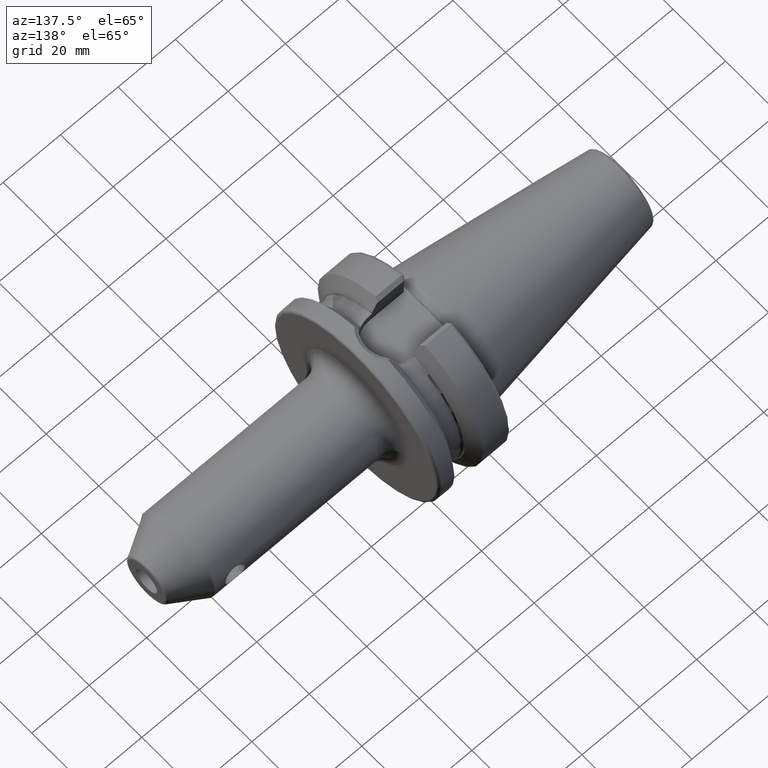
[diagram: clean part render]
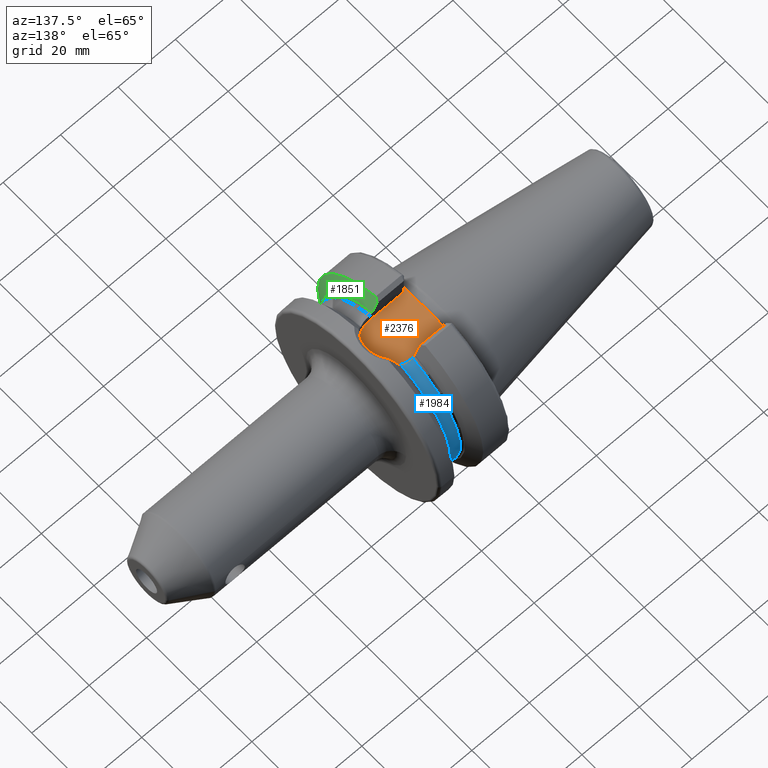
[diagram: same view with three faces highlighted in distinct colors, each labeled with its STEP entity id]
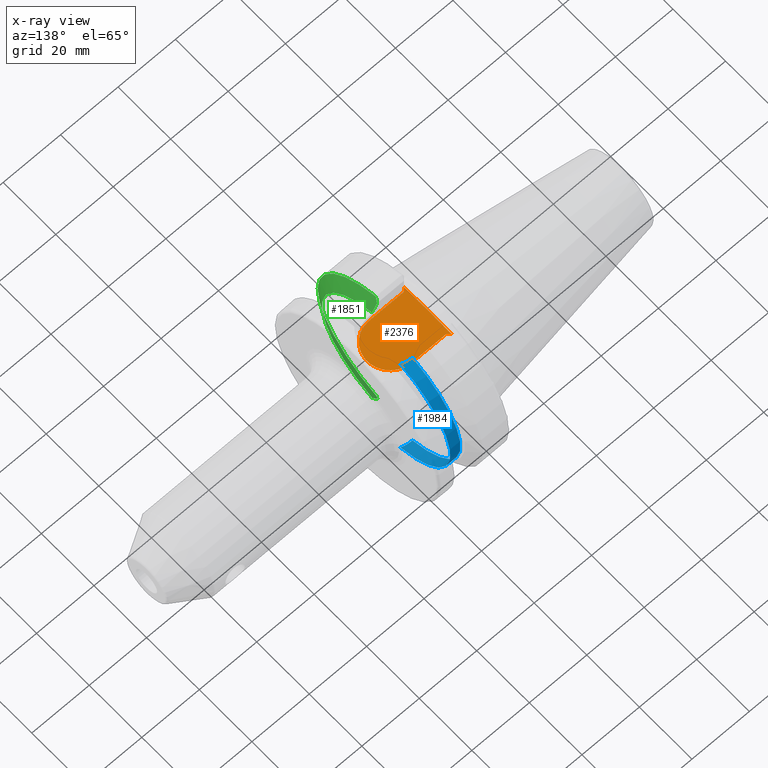
[diagram: x-ray of the same camera — body ghosted, the three highlighted faces saturated]
A machine part, auxiliary view with three faces highlighted in distinct colors.
The next image is the same camera in x-ray (body ghosted, the three faces saturated) — at least one of them is partly hidden behind the body in this view.
Their STEP definitions:

[orange] entity #2376 — the highlighted planar face has unit normal (0, 0, 1).
#680=DIRECTION('',(1.E0,0.E0,0.E0));
#681=VECTOR('',#680,1.2155E1);
#682=CARTESIAN_POINT('',(3.E0,-8.095E0,2.245E1));
#683=LINE('',#682,#681);
#684=DIRECTION('',(0.E0,1.E0,0.E0));
#685=VECTOR('',#684,4.706022328605E0);
#686=CARTESIAN_POINT('',(2.E0,-9.095E0,2.245E1));
#687=LINE('',#686,#685);
#688=DIRECTION('',(0.E0,1.E0,0.E0));
#689=VECTOR('',#688,4.706022328605E0);
#690=CARTESIAN_POINT('',(2.E0,4.388977671395E0,2.245E1));
#691=LINE('',#690,#689);
#692=DIRECTION('',(-1.E0,0.E0,0.E0));
#693=VECTOR('',#692,1.2155E1);
#694=CARTESIAN_POINT('',(1.5155E1,8.095E0,2.245E1));
#695=LINE('',#694,#693);
#696=CARTESIAN_POINT('',(1.5155E1,0.E0,2.245E1));
#697=DIRECTION('',(0.E0,0.E0,1.E0));
#698=DIRECTION('',(0.E0,-1.E0,0.E0));
#699=AXIS2_PLACEMENT_3D('',#696,#697,#698);
#705=DIRECTION('',(7.071067811865E-1,7.071067811865E-1,0.E0));
#706=VECTOR('',#705,1.414213562373E0);
#707=CARTESIAN_POINT('',(2.E0,-9.095E0,2.245E1));
#708=LINE('',#707,#706);
#714=CARTESIAN_POINT('',(2.E0,-4.388977671395E0,2.245E1));
#715=CARTESIAN_POINT('',(2.E0,-3.970864393558E0,2.245E1));
#716=CARTESIAN_POINT('',(1.981114905487E0,-3.134790252725E0,2.245E1));
#717=CARTESIAN_POINT('',(1.935909306649E0,-1.881114481277E0,2.245E1));
#718=CARTESIAN_POINT('',(1.903922826077E0,-6.271978192649E-1,2.245E1));
#719=CARTESIAN_POINT('',(1.903921553166E0,6.271174205746E-1,2.245E1));
#720=CARTESIAN_POINT('',(1.935907277499E0,1.881058976319E0,2.245E1));
#721=CARTESIAN_POINT('',(1.981114329557E0,3.134769380755E0,2.245E1));
#722=CARTESIAN_POINT('',(2.E0,3.970858027314E0,2.245E1));
#723=CARTESIAN_POINT('',(2.E0,4.388977671395E0,2.245E1));
#730=DIRECTION('',(-7.071067811865E-1,7.071067811865E-1,0.E0));
#731=VECTOR('',#730,1.414213562373E0);
#732=CARTESIAN_POINT('',(3.E0,8.095E0,2.245E1));
#733=LINE('',#732,#731);
#1432=CARTESIAN_POINT('',(1.5155E1,-8.095E0,2.245E1));
#1433=CARTESIAN_POINT('',(1.5155E1,8.095E0,2.245E1));
#1434=VERTEX_POINT('',#1432);
#1435=VERTEX_POINT('',#1433);
#1436=CARTESIAN_POINT('',(2.E0,4.388977671395E0,2.245E1));
#1437=VERTEX_POINT('',#1436);
#1438=CARTESIAN_POINT('',(2.E0,-4.388977671395E0,2.245E1));
#1439=VERTEX_POINT('',#1438);
#1473=CARTESIAN_POINT('',(3.E0,-8.095E0,2.245E1));
#1475=VERTEX_POINT('',#1473);
#1477=CARTESIAN_POINT('',(2.E0,-9.095E0,2.245E1));
#1479=VERTEX_POINT('',#1477);
#1486=CARTESIAN_POINT('',(2.E0,9.095E0,2.245E1));
#1487=VERTEX_POINT('',#1486);
#1488=CARTESIAN_POINT('',(3.E0,8.095E0,2.245E1));
#1490=VERTEX_POINT('',#1488);
#2358=CARTESIAN_POINT('',(0.E0,0.E0,2.245E1));
#2359=DIRECTION('',(0.E0,0.E0,1.E0));
#2360=DIRECTION('',(1.E0,0.E0,0.E0));
#2361=AXIS2_PLACEMENT_3D('',#2358,#2359,#2360);
#2362=PLANE('',#2361);
#2363=ORIENTED_EDGE('',*,*,#2124,.F.);
#2365=ORIENTED_EDGE('',*,*,#2364,.F.);
#2366=ORIENTED_EDGE('',*,*,#1735,.T.);
#2368=ORIENTED_EDGE('',*,*,#2367,.T.);
#2369=ORIENTED_EDGE('',*,*,#1713,.T.);
#2371=ORIENTED_EDGE('',*,*,#2370,.F.);
#2372=ORIENTED_EDGE('',*,*,#2349,.F.);
#2373=ORIENTED_EDGE('',*,*,#2095,.F.);
#2374=EDGE_LOOP('',(#2363,#2365,#2366,#2368,#2369,#2371,#2372,#2373));
#2375=FACE_OUTER_BOUND('',#2374,.F.);
#2376=ADVANCED_FACE('',(#2375),#2362,.T.);
#700=CIRCLE('',#699,8.095E0);
#724=B_SPLINE_CURVE_WITH_KNOTS('',3,(#714,#715,#716,#717,#718,#719,#720,#721,
#722,#723),.UNSPECIFIED.,.F.,.F.,(4,1,1,1,1,1,1,4),(0.E0,1.428571428571E-1,
2.857142857143E-1,4.285714285714E-1,5.714285714286E-1,7.142857142857E-1,
8.571428571429E-1,1.E0),.UNSPECIFIED.);
#1713=EDGE_CURVE('',#1437,#1487,#691,.T.);
#1735=EDGE_CURVE('',#1479,#1439,#687,.T.);
#2095=EDGE_CURVE('',#1434,#1435,#700,.T.);
#2124=EDGE_CURVE('',#1475,#1434,#683,.T.);
#2349=EDGE_CURVE('',#1435,#1490,#695,.T.);
#2364=EDGE_CURVE('',#1479,#1475,#708,.T.);
#2367=EDGE_CURVE('',#1439,#1437,#724,.T.);
#2370=EDGE_CURVE('',#1490,#1487,#733,.T.);

[blue] entity #1984 — the highlighted cylindrical surface (partial cylindrical patch) has radius 26.375 mm, axis along (1, 0, 0).
#185=DIRECTION('',(1.E0,2.074577330686E-14,0.E0));
#186=VECTOR('',#185,3.425E-1);
#187=CARTESIAN_POINT('',(1.48125E1,8.095E0,-2.510202382279E1));
#188=LINE('',#187,#186);
#348=CARTESIAN_POINT('',(1.48125E1,0.E0,0.E0));
#349=DIRECTION('',(-1.E0,0.E0,0.E0));
#350=DIRECTION('',(0.E0,3.069194312796E-1,9.517355003902E-1));
#351=AXIS2_PLACEMENT_3D('',#348,#349,#350);
#353=CARTESIAN_POINT('',(1.5155E1,8.095E0,-2.510202382279E1));
#354=CARTESIAN_POINT('',(1.552274115811E1,8.095E0,-2.510202382279E1));
#355=CARTESIAN_POINT('',(1.625266243215E1,8.045449937199E0,-2.511808739773E1));
#356=CARTESIAN_POINT('',(1.734035783533E1,7.820815510938E0,-2.518941465745E1));
#357=CARTESIAN_POINT('',(1.804170386658E1,7.572200800424E0,-2.526513476705E1));
#358=CARTESIAN_POINT('',(1.83875E1,7.421588020768E0,-2.530929979770E1));
#360=CARTESIAN_POINT('',(1.83875E1,7.421588020768E0,2.530929979770E1));
#361=CARTESIAN_POINT('',(1.804170386658E1,7.572200800424E0,2.526513476705E1));
#362=CARTESIAN_POINT('',(1.734035783533E1,7.820815510938E0,2.518941465745E1));
#363=CARTESIAN_POINT('',(1.625266243215E1,8.045449937199E0,2.511808739773E1));
#364=CARTESIAN_POINT('',(1.552274115811E1,8.095E0,2.510202382279E1));
#365=CARTESIAN_POINT('',(1.5155E1,8.095E0,2.510202382279E1));
#450=CARTESIAN_POINT('',(1.83875E1,0.E0,0.E0));
#451=DIRECTION('',(-1.E0,0.E0,0.E0));
#452=DIRECTION('',(0.E0,2.813872235362E-1,9.595943051262E-1));
#453=AXIS2_PLACEMENT_3D('',#450,#451,#452);
#657=DIRECTION('',(1.E0,0.E0,0.E0));
#658=VECTOR('',#657,3.425E-1);
#659=CARTESIAN_POINT('',(1.48125E1,8.095E0,2.510202382279E1));
#660=LINE('',#659,#658);
#1314=CARTESIAN_POINT('',(1.48125E1,8.095E0,2.510202382279E1));
#1315=CARTESIAN_POINT('',(1.48125E1,8.095E0,-2.510202382279E1));
#1316=VERTEX_POINT('',#1314);
#1317=VERTEX_POINT('',#1315);
#1326=CARTESIAN_POINT('',(1.83875E1,7.421588020768E0,2.530929979770E1));
#1327=CARTESIAN_POINT('',(1.83875E1,7.421588020768E0,-2.530929979770E1));
#1328=VERTEX_POINT('',#1326);
#1329=VERTEX_POINT('',#1327);
#1448=CARTESIAN_POINT('',(1.5155E1,8.095E0,2.510202382279E1));
#1449=VERTEX_POINT('',#1448);
#1456=CARTESIAN_POINT('',(1.5155E1,8.095E0,-2.510202382279E1));
#1457=VERTEX_POINT('',#1456);
#1967=CARTESIAN_POINT('',(1.106999478413E1,0.E0,0.E0));
#1968=DIRECTION('',(1.E0,0.E0,0.E0));
#1969=DIRECTION('',(0.E0,-1.E0,0.E0));
#1970=AXIS2_PLACEMENT_3D('',#1967,#1968,#1969);
#1971=CYLINDRICAL_SURFACE('',#1970,2.6375E1);
#1972=ORIENTED_EDGE('',*,*,#1946,.T.);
#1973=ORIENTED_EDGE('',*,*,#1777,.T.);
#1975=ORIENTED_EDGE('',*,*,#1974,.T.);
#1977=ORIENTED_EDGE('',*,*,#1976,.F.);
#1979=ORIENTED_EDGE('',*,*,#1978,.T.);
#1981=ORIENTED_EDGE('',*,*,#1980,.F.);
#1982=EDGE_LOOP('',(#1972,#1973,#1975,#1977,#1979,#1981));
#1983=FACE_OUTER_BOUND('',#1982,.F.);
#1984=ADVANCED_FACE('',(#1983),#1971,.T.);
#352=CIRCLE('',#351,2.6375E1);
#359=B_SPLINE_CURVE_WITH_KNOTS('',3,(#353,#354,#355,#356,#357,#358),
.UNSPECIFIED.,.F.,.F.,(4,1,1,4),(0.E0,3.333333333333E-1,6.666666666667E-1,1.E0),
.UNSPECIFIED.);
#366=B_SPLINE_CURVE_WITH_KNOTS('',3,(#360,#361,#362,#363,#364,#365),
.UNSPECIFIED.,.F.,.F.,(4,1,1,4),(0.E0,3.333333333333E-1,6.666666666667E-1,1.E0),
.UNSPECIFIED.);
#454=CIRCLE('',#453,2.6375E1);
#1777=EDGE_CURVE('',#1317,#1457,#188,.T.);
#1946=EDGE_CURVE('',#1316,#1317,#352,.T.);
#1974=EDGE_CURVE('',#1457,#1329,#359,.T.);
#1976=EDGE_CURVE('',#1328,#1329,#454,.T.);
#1978=EDGE_CURVE('',#1328,#1449,#366,.T.);
#1980=EDGE_CURVE('',#1316,#1449,#660,.T.);

[green] entity #1851 — the highlighted conical surface has half-angle 60 deg.
#205=CARTESIAN_POINT('',(1.40625E1,0.E0,0.E0));
#206=DIRECTION('',(1.E0,0.E0,0.E0));
#207=DIRECTION('',(0.E0,-2.978832194960E-1,9.546023190537E-1));
#208=AXIS2_PLACEMENT_3D('',#205,#206,#207);
#210=CARTESIAN_POINT('',(1.157272253103E1,0.E0,0.E0));
#211=DIRECTION('',(1.E0,0.E0,0.E0));
#212=DIRECTION('',(0.E0,-2.983189831898E-1,9.544662300305E-1));
#213=AXIS2_PLACEMENT_3D('',#210,#211,#212);
#283=CARTESIAN_POINT('',(1.157272253103E1,-9.052779463114E0,-3.015808084481E1));
#284=CARTESIAN_POINT('',(1.166664976709E1,-8.890092718051E0,-3.003705750519E1));
#285=CARTESIAN_POINT('',(1.185193462301E1,-8.567774254092E0,-2.979728347248E1));
#286=CARTESIAN_POINT('',(1.203209445084E1,-8.251571174555E0,-2.956205869943E1));
#287=CARTESIAN_POINT('',(1.212089730171E1,-8.095E0,-2.944558475789E1));
#331=CARTESIAN_POINT('',(1.40625E1,-8.095E0,-2.594139336151E1));
#332=CARTESIAN_POINT('',(1.385657504808E1,-8.095E0,-2.631502798627E1));
#333=CARTESIAN_POINT('',(1.343816757814E1,-8.095E0,-2.707276272189E1));
#334=CARTESIAN_POINT('',(1.279109429984E1,-8.095E0,-2.824052697941E1));
#335=CARTESIAN_POINT('',(1.234647911565E1,-8.095E0,-2.904036968182E1));
#336=CARTESIAN_POINT('',(1.212089730171E1,-8.095E0,-2.944558475789E1));
#536=CARTESIAN_POINT('',(1.231359829731E1,-8.095E0,2.909928918805E1));
#537=CARTESIAN_POINT('',(1.251575951516E1,-8.095E0,2.873583944049E1));
#538=CARTESIAN_POINT('',(1.291487013940E1,-8.095E0,2.801733166678E1));
#539=CARTESIAN_POINT('',(1.349777805891E1,-8.095E0,2.696486188593E1));
#540=CARTESIAN_POINT('',(1.387600348310E1,-8.095E0,2.627977661939E1));
#541=CARTESIAN_POINT('',(1.40625E1,-8.095E0,2.594139336151E1));
#566=CARTESIAN_POINT('',(1.231359829731E1,-8.095E0,2.909928918805E1));
#567=CARTESIAN_POINT('',(1.219482394511E1,-8.305723816550E0,2.925420394272E1));
#568=CARTESIAN_POINT('',(1.195258450384E1,-8.732839300267E0,2.956820020312E1));
#569=CARTESIAN_POINT('',(1.170091988157E1,-9.171274658654E0,2.989051833068E1));
#570=CARTESIAN_POINT('',(1.157272253103E1,-9.393318983190E0,3.005375541808E1));
#1346=CARTESIAN_POINT('',(1.40625E1,-8.095E0,2.594139336151E1));
#1347=CARTESIAN_POINT('',(1.40625E1,-8.095E0,-2.594139336151E1));
#1348=VERTEX_POINT('',#1346);
#1349=VERTEX_POINT('',#1347);
#1453=VERTEX_POINT('',#536);
#1461=VERTEX_POINT('',#336);
#1464=CARTESIAN_POINT('',(1.157272253103E1,-9.393318983190E0,3.005375541808E1));
#1465=CARTESIAN_POINT('',(1.157272253103E1,-9.052779463114E0,
-3.015808084481E1));
#1466=VERTEX_POINT('',#1464);
#1467=VERTEX_POINT('',#1465);
#1833=CARTESIAN_POINT('',(1.281761126552E1,0.E0,0.E0));
#1834=DIRECTION('',(-1.E0,0.E0,0.E0));
#1835=DIRECTION('',(0.E0,1.E0,0.E0));
#1836=AXIS2_PLACEMENT_3D('',#1833,#1834,#1835);
#1837=CONICAL_SURFACE('',#1836,2.933128946210E1,6.E1);
#1838=ORIENTED_EDGE('',*,*,#1804,.T.);
#1840=ORIENTED_EDGE('',*,*,#1839,.T.);
#1842=ORIENTED_EDGE('',*,*,#1841,.F.);
#1844=ORIENTED_EDGE('',*,*,#1843,.F.);
#1846=ORIENTED_EDGE('',*,*,#1845,.F.);
#1848=ORIENTED_EDGE('',*,*,#1847,.T.);
#1849=EDGE_LOOP('',(#1838,#1840,#1842,#1844,#1846,#1848));
#1850=FACE_OUTER_BOUND('',#1849,.F.);
#1851=ADVANCED_FACE('',(#1850),#1837,.T.);
#209=CIRCLE('',#208,2.717507892421E1);
#214=CIRCLE('',#213,3.14875E1);
#288=B_SPLINE_CURVE_WITH_KNOTS('',3,(#283,#284,#285,#286,#287),.UNSPECIFIED.,
.F.,.F.,(4,1,4),(0.E0,5.E-1,1.E0),.UNSPECIFIED.);
#337=B_SPLINE_CURVE_WITH_KNOTS('',3,(#331,#332,#333,#334,#335,#336),
.UNSPECIFIED.,.F.,.F.,(4,1,1,4),(0.E0,3.333333333333E-1,6.666666666667E-1,1.E0),
.UNSPECIFIED.);
#542=B_SPLINE_CURVE_WITH_KNOTS('',3,(#536,#537,#538,#539,#540,#541),
.UNSPECIFIED.,.F.,.F.,(4,1,1,4),(0.E0,3.333333333333E-1,6.666666666667E-1,1.E0),
.UNSPECIFIED.);
#571=B_SPLINE_CURVE_WITH_KNOTS('',3,(#566,#567,#568,#569,#570),.UNSPECIFIED.,
.F.,.F.,(4,1,4),(0.E0,5.E-1,1.E0),.UNSPECIFIED.);
#1804=EDGE_CURVE('',#1348,#1349,#209,.T.);
#1839=EDGE_CURVE('',#1349,#1461,#337,.T.);
#1841=EDGE_CURVE('',#1467,#1461,#288,.T.);
#1843=EDGE_CURVE('',#1466,#1467,#214,.T.);
#1845=EDGE_CURVE('',#1453,#1466,#571,.T.);
#1847=EDGE_CURVE('',#1453,#1348,#542,.T.);